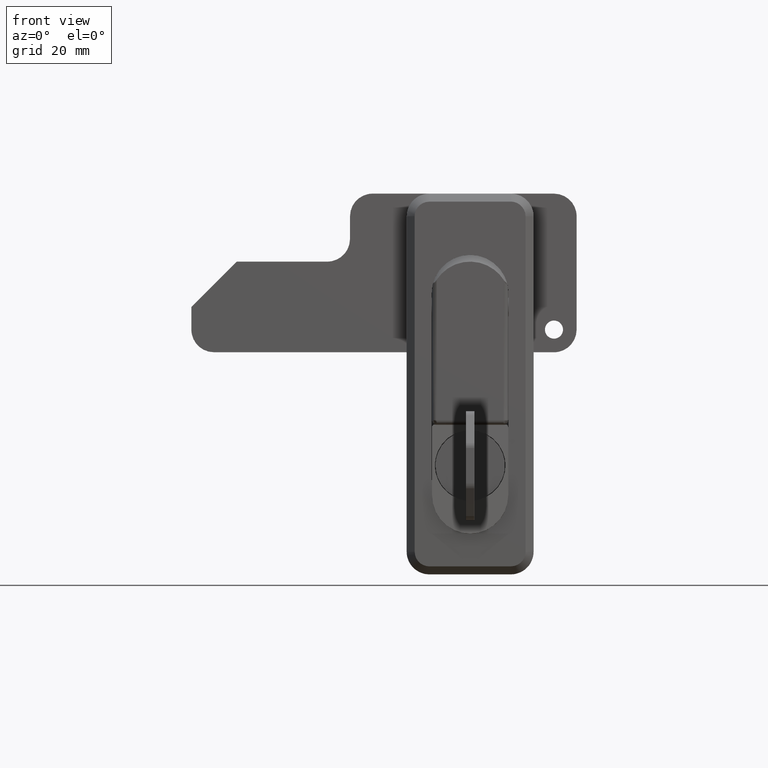
[diagram: clean part render]
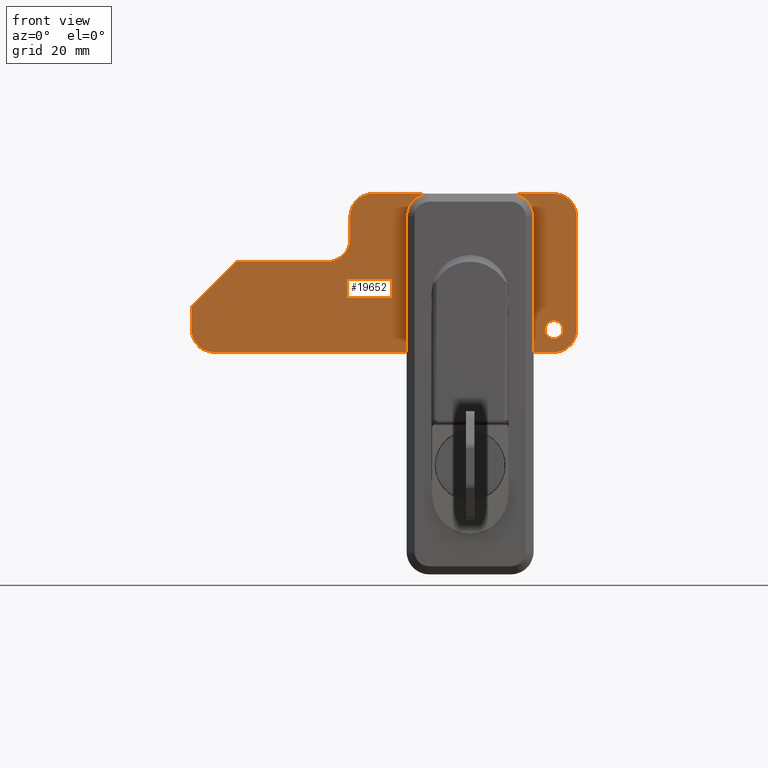
[diagram: same view with one face highlighted and labeled with its STEP entity id]
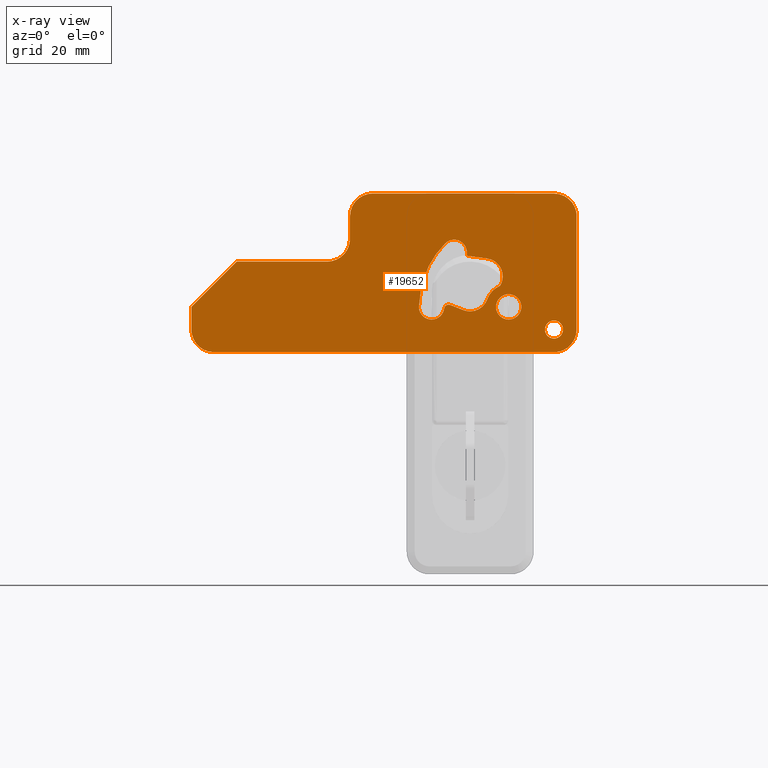
[diagram: x-ray of the same camera — body ghosted, the highlighted face saturated]
A machine part, front view. The second image highlights one B-rep face of the part: STEP entity #19652.
The next image is the same camera in x-ray: the body ghosted, the highlighted face saturated — about 0% of this face is hidden behind the body in this view.
In plain terms, the highlighted face is a freeform B-spline surface patch.
Its self-contained STEP definition (entity closure, byte-faithful):
#18319=CARTESIAN_POINT('',(0.0,-18.500000000000000,-3.0));
#18320=VERTEX_POINT('',#18319);
#18321=CARTESIAN_POINT('',(-1.040834E-016,-20.493834667453040,-4.843081808376401));
#18322=VERTEX_POINT('',#18321);
#18323=CARTESIAN_POINT('',(0.0,-18.500000000000000,-3.0));
#18324=CARTESIAN_POINT('',(0.0,-20.348780983004065,-3.000000000000001));
#18325=CARTESIAN_POINT('',(-1.040834E-016,-20.493834667453040,-4.843081808376400));
#18333=(BOUNDED_CURVE()B_SPLINE_CURVE(2,(#18323,#18324,#18325),.UNSPECIFIED.,.F.,.U.)B_SPLINE_CURVE_WITH_KNOTS((3,3),(0.0,0.236331300603894),.UNSPECIFIED.)CURVE()GEOMETRIC_REPRESENTATION_ITEM()RATIONAL_B_SPLINE_CURVE((1.0,0.723120658639023,0.969723356111560))REPRESENTATION_ITEM(''));
#18334=EDGE_CURVE('',#18320,#18322,#18333,.T.);
#18336=CARTESIAN_POINT('',(-1.040834E-016,-16.506165332546960,-5.156918191623599));
#18337=VERTEX_POINT('',#18336);
#18338=CARTESIAN_POINT('',(-1.040834E-016,-16.506165332546960,-5.156918191623599));
#18339=CARTESIAN_POINT('',(0.0,-16.499999999999996,-5.078580214184028));
#18340=CARTESIAN_POINT('',(0.0,-16.500000000000000,-5.0));
#18341=CARTESIAN_POINT('',(0.0,-16.499999999999993,-3.0));
#18342=CARTESIAN_POINT('',(0.0,-18.500000000000000,-3.0));
#18350=(BOUNDED_CURVE()B_SPLINE_CURVE(2,(#18338,#18339,#18340,#18341,#18342),.UNSPECIFIED.,.F.,.U.)B_SPLINE_CURVE_WITH_KNOTS((3,2,3),(0.736331300603894,0.750000000000000,1.0),.UNSPECIFIED.)CURVE()GEOMETRIC_REPRESENTATION_ITEM()RATIONAL_B_SPLINE_CURVE((0.969723356111561,0.983986122547524,1.0,0.707106781186548,1.0))REPRESENTATION_ITEM(''));
#18351=EDGE_CURVE('',#18337,#18320,#18350,.T.);
#18418=CARTESIAN_POINT('',(0.0,-18.500000000000000,-7.0));
#18419=VERTEX_POINT('',#18418);
#18420=CARTESIAN_POINT('',(-1.040834E-016,-20.493834667453040,-4.843081808376402));
#18421=CARTESIAN_POINT('',(0.0,-20.499999999999996,-4.921419785815973));
#18422=CARTESIAN_POINT('',(0.0,-20.500000000000000,-5.0));
#18423=CARTESIAN_POINT('',(0.0,-20.499999999999993,-6.999999999999999));
#18424=CARTESIAN_POINT('',(0.0,-18.500000000000000,-7.0));
#18432=(BOUNDED_CURVE()B_SPLINE_CURVE(2,(#18420,#18421,#18422,#18423,#18424),.UNSPECIFIED.,.F.,.U.)B_SPLINE_CURVE_WITH_KNOTS((3,2,3),(0.236331300603894,0.250000000000000,0.500000000000000),.UNSPECIFIED.)CURVE()GEOMETRIC_REPRESENTATION_ITEM()RATIONAL_B_SPLINE_CURVE((0.969723356111561,0.983986122547524,1.0,0.707106781186548,1.0))REPRESENTATION_ITEM(''));
#18433=EDGE_CURVE('',#18322,#18419,#18432,.T.);
#18467=CARTESIAN_POINT('',(0.0,-18.500000000000000,-7.0));
#18468=CARTESIAN_POINT('',(0.0,-16.651219016995945,-6.999999999999999));
#18469=CARTESIAN_POINT('',(-1.040834E-016,-16.506165332546960,-5.156918191623599));
#18477=(BOUNDED_CURVE()B_SPLINE_CURVE(2,(#18467,#18468,#18469),.UNSPECIFIED.,.F.,.U.)B_SPLINE_CURVE_WITH_KNOTS((3,3),(0.500000000000000,0.736331300603894),.UNSPECIFIED.)CURVE()GEOMETRIC_REPRESENTATION_ITEM()RATIONAL_B_SPLINE_CURVE((1.0,0.723120658639024,0.969723356111559))REPRESENTATION_ITEM(''));
#18478=EDGE_CURVE('',#18419,#18337,#18477,.T.);
#18501=CARTESIAN_POINT('',(0.0,-8.499999999999901,2.799999999999999));
#18502=VERTEX_POINT('',#18501);
#18503=CARTESIAN_POINT('',(-1.040834E-016,-11.291368534418190,0.219685468476008));
#18504=VERTEX_POINT('',#18503);
#18505=CARTESIAN_POINT('',(0.0,-8.499999999999901,2.799999999999999));
#18506=CARTESIAN_POINT('',(0.0,-11.088293375828023,2.799999999999999));
#18507=CARTESIAN_POINT('',(-1.040834E-016,-11.291368534418188,0.219685468476008));
#18515=(BOUNDED_CURVE()B_SPLINE_CURVE(2,(#18505,#18506,#18507),.UNSPECIFIED.,.F.,.U.)B_SPLINE_CURVE_WITH_KNOTS((3,3),(0.0,0.236331300578965),.UNSPECIFIED.)CURVE()GEOMETRIC_REPRESENTATION_ITEM()RATIONAL_B_SPLINE_CURVE((1.0,0.723120658668230,0.969723356059534))REPRESENTATION_ITEM(''));
#18516=EDGE_CURVE('',#18502,#18504,#18515,.T.);
#18518=CARTESIAN_POINT('',(-1.040834E-016,-5.708631465581616,-0.219685468476009));
#18519=VERTEX_POINT('',#18518);
#18520=CARTESIAN_POINT('',(-1.040834E-016,-5.708631465581616,-0.219685468476009));
#18521=CARTESIAN_POINT('',(0.0,-5.699999999999900,-0.110012300061550));
#18522=CARTESIAN_POINT('',(0.0,-5.699999999999900,-5.204577E-016));
#18523=CARTESIAN_POINT('',(0.0,-5.699999999999899,2.800000000000000));
#18524=CARTESIAN_POINT('',(0.0,-8.499999999999901,2.799999999999999));
#18532=(BOUNDED_CURVE()B_SPLINE_CURVE(2,(#18520,#18521,#18522,#18523,#18524),.UNSPECIFIED.,.F.,.U.)B_SPLINE_CURVE_WITH_KNOTS((3,2,3),(0.736331300578965,0.750000000000000,1.0),.UNSPECIFIED.)CURVE()GEOMETRIC_REPRESENTATION_ITEM()RATIONAL_B_SPLINE_CURVE((0.969723356059534,0.983986122518317,1.0,0.707106781186547,1.0))REPRESENTATION_ITEM(''));
#18533=EDGE_CURVE('',#18519,#18502,#18532,.T.);
#18600=CARTESIAN_POINT('',(0.0,-8.499999999999901,-2.800000000000000));
#18601=VERTEX_POINT('',#18600);
#18602=CARTESIAN_POINT('',(-1.040834E-016,-11.291368534418190,0.219685468476008));
#18603=CARTESIAN_POINT('',(0.0,-11.299999999999901,0.110012300061549));
#18604=CARTESIAN_POINT('',(0.0,-11.299999999999899,-5.204577E-016));
#18605=CARTESIAN_POINT('',(0.0,-11.299999999999901,-2.800000000000000));
#18606=CARTESIAN_POINT('',(0.0,-8.499999999999901,-2.800000000000000));
#18614=(BOUNDED_CURVE()B_SPLINE_CURVE(2,(#18602,#18603,#18604,#18605,#18606),.UNSPECIFIED.,.F.,.U.)B_SPLINE_CURVE_WITH_KNOTS((3,2,3),(0.236331300578965,0.250000000000000,0.500000000000000),.UNSPECIFIED.)CURVE()GEOMETRIC_REPRESENTATION_ITEM()RATIONAL_B_SPLINE_CURVE((0.969723356059534,0.983986122518317,1.0,0.707106781186547,1.0))REPRESENTATION_ITEM(''));
#18615=EDGE_CURVE('',#18504,#18601,#18614,.T.);
#18649=CARTESIAN_POINT('',(0.0,-8.499999999999901,-2.800000000000000));
#18650=CARTESIAN_POINT('',(0.0,-5.911706624171777,-2.800000000000001));
#18651=CARTESIAN_POINT('',(-1.040834E-016,-5.708631465581616,-0.219685468476009));
#18659=(BOUNDED_CURVE()B_SPLINE_CURVE(2,(#18649,#18650,#18651),.UNSPECIFIED.,.F.,.U.)B_SPLINE_CURVE_WITH_KNOTS((3,3),(0.500000000000000,0.736331300578965),.UNSPECIFIED.)CURVE()GEOMETRIC_REPRESENTATION_ITEM()RATIONAL_B_SPLINE_CURVE((1.0,0.723120658668230,0.969723356059534))REPRESENTATION_ITEM(''));
#18660=EDGE_CURVE('',#18601,#18519,#18659,.T.);
#18679=CARTESIAN_POINT('',(0.0,-3.724927298301265,10.682482456983440));
#18680=VERTEX_POINT('',#18679);
#18681=CARTESIAN_POINT('',(0.0,-6.619694514177331,4.647948415167900));
#18682=VERTEX_POINT('',#18681);
#18683=CARTESIAN_POINT('',(0.0,-3.724927298301267,10.682482456983440));
#18684=CARTESIAN_POINT('',(0.0,-5.868083674446925,10.396962948355025));
#18685=CARTESIAN_POINT('',(0.0,-6.803212923379730,8.447559467745746));
#18686=CARTESIAN_POINT('',(0.0,-7.738342172312538,6.498155987136468));
#18687=CARTESIAN_POINT('',(0.0,-6.619694514177325,4.647948415167906));
#18695=(BOUNDED_CURVE()B_SPLINE_CURVE(2,(#18683,#18684,#18685,#18686,#18687),.UNSPECIFIED.,.F.,.U.)B_SPLINE_CURVE_WITH_KNOTS((3,2,3),(0.0,0.500000000000000,1.0),.UNSPECIFIED.)CURVE()GEOMETRIC_REPRESENTATION_ITEM()RATIONAL_B_SPLINE_CURVE((1.0,0.879712993348293,1.0,0.879712993348293,1.0))REPRESENTATION_ITEM(''));
#18696=EDGE_CURVE('',#18680,#18682,#18695,.T.);
#18744=CARTESIAN_POINT('',(0.0,-3.771961330339195,1.668719517747750));
#18745=VERTEX_POINT('',#18744);
#18746=CARTESIAN_POINT('',(0.0,-3.771961330339195,1.668719517747750));
#18747=CARTESIAN_POINT('',(0.0,-4.524267572966810,3.800253321255731));
#18748=CARTESIAN_POINT('',(0.0,-6.619694514177331,4.647948415167900));
#18756=(BOUNDED_CURVE()B_SPLINE_CURVE(2,(#18746,#18747,#18748),.UNSPECIFIED.,.F.,.U.)CURVE()GEOMETRIC_REPRESENTATION_ITEM()QUASI_UNIFORM_CURVE()RATIONAL_B_SPLINE_CURVE((1.0,0.911638688847786,1.0))REPRESENTATION_ITEM(''));
#18757=EDGE_CURVE('',#18745,#18682,#18756,.T.);
#18797=CARTESIAN_POINT('',(0.0,1.452227357557548,-0.727067976568367));
#18798=VERTEX_POINT('',#18797);
#18799=CARTESIAN_POINT('',(0.0,-3.771961330339194,1.668719517747751));
#18800=CARTESIAN_POINT('',(0.0,-3.207907948622407,0.070568284820988));
#18801=CARTESIAN_POINT('',(0.0,-1.667405426283513,-0.635898670810326));
#18802=CARTESIAN_POINT('',(0.0,-0.126902903944619,-1.342365626441640));
#18803=CARTESIAN_POINT('',(0.0,1.452227357557548,-0.727067976568368));
#18811=(BOUNDED_CURVE()B_SPLINE_CURVE(2,(#18799,#18800,#18801,#18802,#18803),.UNSPECIFIED.,.F.,.U.)B_SPLINE_CURVE_WITH_KNOTS((3,2,3),(0.0,0.500000000000000,1.0),.UNSPECIFIED.)CURVE()GEOMETRIC_REPRESENTATION_ITEM()RATIONAL_B_SPLINE_CURVE((1.0,0.920763774771993,1.0,0.920763774771993,1.0))REPRESENTATION_ITEM(''));
#18812=EDGE_CURVE('',#18745,#18798,#18811,.T.);
#18845=CARTESIAN_POINT('',(0.0,4.372808160610620,0.410916994142096));
#18846=VERTEX_POINT('',#18845);
#18847=CARTESIAN_POINT('',(0.0,4.372808160610620,0.410916994142096));
#18848=CARTESIAN_POINT('',(0.0,1.452227357557548,-0.727067976568367));
#18849=QUASI_UNIFORM_CURVE('',1,(#18847,#18848),.UNSPECIFIED.,.F.,.U.);
#18850=EDGE_CURVE('',#18846,#18798,#18849,.T.);
#18882=CARTESIAN_POINT('',(0.0,5.726426587349770,-0.383784476809226));
#18883=VERTEX_POINT('',#18882);
#18884=CARTESIAN_POINT('',(0.0,5.726426587349770,-0.383784476809226));
#18885=CARTESIAN_POINT('',(0.0,5.660011899428978,0.096192027627182));
#18886=CARTESIAN_POINT('',(0.0,5.242153711748959,0.341514041664296));
#18887=CARTESIAN_POINT('',(0.0,4.824295524068941,0.586836055701410));
#18888=CARTESIAN_POINT('',(0.0,4.372808160610621,0.410916994142095));
#18896=(BOUNDED_CURVE()B_SPLINE_CURVE(2,(#18884,#18885,#18886,#18887,#18888),.UNSPECIFIED.,.F.,.U.)B_SPLINE_CURVE_WITH_KNOTS((3,2,3),(0.0,0.500000000000000,1.0),.UNSPECIFIED.)CURVE()GEOMETRIC_REPRESENTATION_ITEM()RATIONAL_B_SPLINE_CURVE((1.0,0.899919655150301,1.0,0.899919655150301,1.0))REPRESENTATION_ITEM(''));
#18897=EDGE_CURVE('',#18883,#18846,#18896,.T.);
#18943=CARTESIAN_POINT('',(0.0,11.300000000000001,-5.204577E-016));
#18944=VERTEX_POINT('',#18943);
#18945=CARTESIAN_POINT('',(0.0,5.726426587349766,-0.383784476809225));
#18946=CARTESIAN_POINT('',(0.0,6.084693240334018,-2.972943036888907));
#18947=CARTESIAN_POINT('',(0.0,8.692346620167008,-2.793385540470618));
#18948=CARTESIAN_POINT('',(0.0,11.300000000000001,-2.613828044052329));
#18949=CARTESIAN_POINT('',(0.0,11.300000000000001,5.204577E-016));
#18957=(BOUNDED_CURVE()B_SPLINE_CURVE(2,(#18945,#18946,#18947,#18948,#18949),.UNSPECIFIED.,.F.,.U.)B_SPLINE_CURVE_WITH_KNOTS((3,2,3),(0.0,0.500000000000000,1.0),.UNSPECIFIED.)CURVE()GEOMETRIC_REPRESENTATION_ITEM()RATIONAL_B_SPLINE_CURVE((1.0,0.730990841764867,1.0,0.730990841764867,1.0))REPRESENTATION_ITEM(''));
#18958=EDGE_CURVE('',#18883,#18944,#18957,.T.);
#19000=CARTESIAN_POINT('',(0.0,5.500713987322430,14.000713987322120));
#19001=VERTEX_POINT('',#19000);
#19002=CARTESIAN_POINT('',(0.0,11.300000000000001,-5.204577E-016));
#19003=CARTESIAN_POINT('',(0.0,11.300000000000098,8.201428534987187));
#19004=CARTESIAN_POINT('',(0.0,5.500713987322430,14.000713987322120));
#19012=(BOUNDED_CURVE()B_SPLINE_CURVE(2,(#19002,#19003,#19004),.UNSPECIFIED.,.F.,.U.)CURVE()GEOMETRIC_REPRESENTATION_ITEM()QUASI_UNIFORM_CURVE()RATIONAL_B_SPLINE_CURVE((1.0,0.923879532511288,1.0))REPRESENTATION_ITEM(''));
#19013=EDGE_CURVE('',#18944,#19001,#19012,.T.);
#19057=CARTESIAN_POINT('',(0.0,0.720815000000101,12.020814999999800));
#19058=VERTEX_POINT('',#19057);
#19059=CARTESIAN_POINT('',(0.0,5.500713987322439,14.000713987322129));
#19060=CARTESIAN_POINT('',(0.0,4.177787778755605,15.323640195888975));
#19061=CARTESIAN_POINT('',(0.0,2.449301389377853,14.607677691031411));
#19062=CARTESIAN_POINT('',(0.0,0.720815000000100,13.891715186173842));
#19063=CARTESIAN_POINT('',(0.0,0.720815000000100,12.020814999999800));
#19071=(BOUNDED_CURVE()B_SPLINE_CURVE(2,(#19059,#19060,#19061,#19062,#19063),.UNSPECIFIED.,.F.,.U.)B_SPLINE_CURVE_WITH_KNOTS((3,2,3),(0.0,0.500000000000000,1.0),.UNSPECIFIED.)CURVE()GEOMETRIC_REPRESENTATION_ITEM()RATIONAL_B_SPLINE_CURVE((1.0,0.831469612302545,1.0,0.831469612302545,1.0))REPRESENTATION_ITEM(''));
#19072=EDGE_CURVE('',#19001,#19058,#19071,.T.);
#19105=CARTESIAN_POINT('',(0.0,0.720815000000101,11.274762000000001));
#19106=VERTEX_POINT('',#19105);
#19107=CARTESIAN_POINT('',(0.0,0.720815000000101,11.274762000000001));
#19108=CARTESIAN_POINT('',(0.0,0.720815000000101,12.020814999999800));
#19109=QUASI_UNIFORM_CURVE('',1,(#19107,#19108),.UNSPECIFIED.,.F.,.U.);
#19110=EDGE_CURVE('',#19106,#19058,#19109,.T.);
#19133=CARTESIAN_POINT('',(0.0,-3.724927298301265,10.682482456983440));
#19134=CARTESIAN_POINT('',(0.0,0.720815000000101,11.274762000000001));
#19135=QUASI_UNIFORM_CURVE('',1,(#19133,#19134),.UNSPECIFIED.,.F.,.U.);
#19136=EDGE_CURVE('',#18680,#19106,#19135,.T.);
#19153=CARTESIAN_POINT('',(0.0,26.500000000000000,15.0));
#19154=VERTEX_POINT('',#19153);
#19155=CARTESIAN_POINT('',(0.0,26.500000000000000,20.0));
#19156=VERTEX_POINT('',#19155);
#19157=CARTESIAN_POINT('',(0.0,26.500000000000000,15.0));
#19158=CARTESIAN_POINT('',(0.0,26.500000000000000,20.0));
#19159=QUASI_UNIFORM_CURVE('',1,(#19157,#19158),.UNSPECIFIED.,.F.,.U.);
#19160=EDGE_CURVE('',#19154,#19156,#19159,.T.);
#19198=CARTESIAN_POINT('',(0.0,31.500000000000000,10.0));
#19199=VERTEX_POINT('',#19198);
#19200=CARTESIAN_POINT('',(0.0,26.500000000000000,15.0));
#19201=CARTESIAN_POINT('',(0.0,26.500000000000000,9.999999999999998));
#19202=CARTESIAN_POINT('',(0.0,31.500000000000000,9.999999999999998));
#19210=(BOUNDED_CURVE()B_SPLINE_CURVE(2,(#19200,#19201,#19202),.UNSPECIFIED.,.F.,.U.)CURVE()GEOMETRIC_REPRESENTATION_ITEM()QUASI_UNIFORM_CURVE()RATIONAL_B_SPLINE_CURVE((1.0,0.707106781186548,1.0))REPRESENTATION_ITEM(''));
#19211=EDGE_CURVE('',#19154,#19199,#19210,.T.);
#19242=CARTESIAN_POINT('',(0.0,51.500000000000000,10.0));
#19243=VERTEX_POINT('',#19242);
#19244=CARTESIAN_POINT('',(0.0,51.500000000000000,10.0));
#19245=CARTESIAN_POINT('',(0.0,31.500000000000000,10.0));
#19246=QUASI_UNIFORM_CURVE('',1,(#19244,#19245),.UNSPECIFIED.,.F.,.U.);
#19247=EDGE_CURVE('',#19243,#19199,#19246,.T.);
#19270=CARTESIAN_POINT('',(0.0,61.500000000000000,3.765665E-015));
#19271=VERTEX_POINT('',#19270);
#19272=CARTESIAN_POINT('',(0.0,61.500000000000000,3.765665E-015));
#19273=CARTESIAN_POINT('',(0.0,51.500000000000000,10.0));
#19274=QUASI_UNIFORM_CURVE('',1,(#19272,#19273),.UNSPECIFIED.,.F.,.U.);
#19275=EDGE_CURVE('',#19271,#19243,#19274,.T.);
#19298=CARTESIAN_POINT('',(0.0,61.500000000000000,-5.0));
#19299=VERTEX_POINT('',#19298);
#19300=CARTESIAN_POINT('',(0.0,61.500000000000000,-5.0));
#19301=CARTESIAN_POINT('',(0.0,61.500000000000000,3.765665E-015));
#19302=QUASI_UNIFORM_CURVE('',1,(#19300,#19301),.UNSPECIFIED.,.F.,.U.);
#19303=EDGE_CURVE('',#19299,#19271,#19302,.T.);
#19335=CARTESIAN_POINT('',(0.0,56.500000000000000,-10.0));
#19336=VERTEX_POINT('',#19335);
#19337=CARTESIAN_POINT('',(0.0,56.500000000000000,-10.0));
#19338=CARTESIAN_POINT('',(0.0,61.500000000000007,-10.000000000000002));
#19339=CARTESIAN_POINT('',(0.0,61.500000000000000,-5.0));
#19347=(BOUNDED_CURVE()B_SPLINE_CURVE(2,(#19337,#19338,#19339),.UNSPECIFIED.,.F.,.U.)CURVE()GEOMETRIC_REPRESENTATION_ITEM()QUASI_UNIFORM_CURVE()RATIONAL_B_SPLINE_CURVE((1.0,0.707106781186548,1.0))REPRESENTATION_ITEM(''));
#19348=EDGE_CURVE('',#19336,#19299,#19347,.T.);
#19379=CARTESIAN_POINT('',(0.0,-18.500000000000000,-10.0));
#19380=VERTEX_POINT('',#19379);
#19381=CARTESIAN_POINT('',(0.0,-18.500000000000000,-10.0));
#19382=CARTESIAN_POINT('',(0.0,56.500000000000000,-10.0));
#19383=QUASI_UNIFORM_CURVE('',1,(#19381,#19382),.UNSPECIFIED.,.F.,.U.);
#19384=EDGE_CURVE('',#19380,#19336,#19383,.T.);
#19416=CARTESIAN_POINT('',(0.0,-23.500000000000000,-5.0));
#19417=VERTEX_POINT('',#19416);
#19418=CARTESIAN_POINT('',(0.0,-23.500000000000000,-5.0));
#19419=CARTESIAN_POINT('',(0.0,-23.500000000000004,-10.000000000000002));
#19420=CARTESIAN_POINT('',(0.0,-18.500000000000000,-10.0));
#19428=(BOUNDED_CURVE()B_SPLINE_CURVE(2,(#19418,#19419,#19420),.UNSPECIFIED.,.F.,.U.)CURVE()GEOMETRIC_REPRESENTATION_ITEM()QUASI_UNIFORM_CURVE()RATIONAL_B_SPLINE_CURVE((1.0,0.707106781186548,1.0))REPRESENTATION_ITEM(''));
#19429=EDGE_CURVE('',#19417,#19380,#19428,.T.);
#19460=CARTESIAN_POINT('',(0.0,-23.500000000000000,20.0));
#19461=VERTEX_POINT('',#19460);
#19462=CARTESIAN_POINT('',(0.0,-23.500000000000000,20.0));
#19463=CARTESIAN_POINT('',(0.0,-23.500000000000000,-5.0));
#19464=QUASI_UNIFORM_CURVE('',1,(#19462,#19463),.UNSPECIFIED.,.F.,.U.);
#19465=EDGE_CURVE('',#19461,#19417,#19464,.T.);
#19497=CARTESIAN_POINT('',(0.0,-18.500000000000000,25.0));
#19498=VERTEX_POINT('',#19497);
#19499=CARTESIAN_POINT('',(0.0,-18.500000000000000,25.0));
#19500=CARTESIAN_POINT('',(0.0,-23.500000000000004,25.0));
#19501=CARTESIAN_POINT('',(0.0,-23.500000000000000,20.0));
#19509=(BOUNDED_CURVE()B_SPLINE_CURVE(2,(#19499,#19500,#19501),.UNSPECIFIED.,.F.,.U.)CURVE()GEOMETRIC_REPRESENTATION_ITEM()QUASI_UNIFORM_CURVE()RATIONAL_B_SPLINE_CURVE((1.0,0.707106781186548,1.0))REPRESENTATION_ITEM(''));
#19510=EDGE_CURVE('',#19498,#19461,#19509,.T.);
#19541=CARTESIAN_POINT('',(0.0,21.500000000000000,25.0));
#19542=VERTEX_POINT('',#19541);
#19543=CARTESIAN_POINT('',(0.0,21.500000000000000,25.0));
#19544=CARTESIAN_POINT('',(0.0,-18.500000000000000,25.0));
#19545=QUASI_UNIFORM_CURVE('',1,(#19543,#19544),.UNSPECIFIED.,.F.,.U.);
#19546=EDGE_CURVE('',#19542,#19498,#19545,.T.);
#19578=CARTESIAN_POINT('',(0.0,26.500000000000000,20.0));
#19579=CARTESIAN_POINT('',(0.0,26.500000000000000,25.0));
#19580=CARTESIAN_POINT('',(0.0,21.500000000000000,25.0));
#19588=(BOUNDED_CURVE()B_SPLINE_CURVE(2,(#19578,#19579,#19580),.UNSPECIFIED.,.F.,.U.)CURVE()GEOMETRIC_REPRESENTATION_ITEM()QUASI_UNIFORM_CURVE()RATIONAL_B_SPLINE_CURVE((1.0,0.707106781186548,1.0))REPRESENTATION_ITEM(''));
#19589=EDGE_CURVE('',#19156,#19542,#19588,.T.);
#19609=CARTESIAN_POINT('',(0.0,-27.745749835253509,26.748249932163208));
#19610=CARTESIAN_POINT('',(0.0,65.745752115131168,26.748249932163208));
#19611=CARTESIAN_POINT('',(0.0,-27.745749835253509,-11.748250870936360));
#19612=CARTESIAN_POINT('',(0.0,65.745752115131168,-11.748250870936360));
#19613=B_SPLINE_SURFACE_WITH_KNOTS('',1,1,((#19609,#19611),(#19610,#19612)),.UNSPECIFIED.,.F.,.F.,.U.,(2,2),(2,2),(0.0,93.491501950384674),(0.0,38.496500803099572),.UNSPECIFIED.);
#19614=ORIENTED_EDGE('',*,*,#19589,.F.);
#19615=ORIENTED_EDGE('',*,*,#19160,.F.);
#19616=ORIENTED_EDGE('',*,*,#19211,.T.);
#19617=ORIENTED_EDGE('',*,*,#19247,.F.);
#19618=ORIENTED_EDGE('',*,*,#19275,.F.);
#19619=ORIENTED_EDGE('',*,*,#19303,.F.);
#19620=ORIENTED_EDGE('',*,*,#19348,.F.);
#19621=ORIENTED_EDGE('',*,*,#19384,.F.);
#19622=ORIENTED_EDGE('',*,*,#19429,.F.);
#19623=ORIENTED_EDGE('',*,*,#19465,.F.);
#19624=ORIENTED_EDGE('',*,*,#19510,.F.);
#19625=ORIENTED_EDGE('',*,*,#19546,.F.);
#19626=EDGE_LOOP('',(#19614,#19615,#19616,#19617,#19618,#19619,#19620,#19621,#19622,#19623,#19624,#19625));
#19627=FACE_OUTER_BOUND('',#19626,.T.);
#19628=ORIENTED_EDGE('',*,*,#19110,.F.);
#19629=ORIENTED_EDGE('',*,*,#19136,.F.);
#19630=ORIENTED_EDGE('',*,*,#18696,.T.);
#19631=ORIENTED_EDGE('',*,*,#18757,.F.);
#19632=ORIENTED_EDGE('',*,*,#18812,.T.);
#19633=ORIENTED_EDGE('',*,*,#18850,.F.);
#19634=ORIENTED_EDGE('',*,*,#18897,.F.);
#19635=ORIENTED_EDGE('',*,*,#18958,.T.);
#19636=ORIENTED_EDGE('',*,*,#19013,.T.);
#19637=ORIENTED_EDGE('',*,*,#19072,.T.);
#19638=EDGE_LOOP('',(#19628,#19629,#19630,#19631,#19632,#19633,#19634,#19635,#19636,#19637));
#19639=FACE_BOUND('',#19638,.T.);
#19640=ORIENTED_EDGE('',*,*,#18660,.T.);
#19641=ORIENTED_EDGE('',*,*,#18533,.T.);
#19642=ORIENTED_EDGE('',*,*,#18516,.T.);
#19643=ORIENTED_EDGE('',*,*,#18615,.T.);
#19644=EDGE_LOOP('',(#19640,#19641,#19642,#19643));
#19645=FACE_BOUND('',#19644,.T.);
#19646=ORIENTED_EDGE('',*,*,#18478,.T.);
#19647=ORIENTED_EDGE('',*,*,#18351,.T.);
#19648=ORIENTED_EDGE('',*,*,#18334,.T.);
#19649=ORIENTED_EDGE('',*,*,#18433,.T.);
#19650=EDGE_LOOP('',(#19646,#19647,#19648,#19649));
#19651=FACE_BOUND('',#19650,.T.);
#19652=ADVANCED_FACE('',(#19627,#19639,#19645,#19651),#19613,.T.);